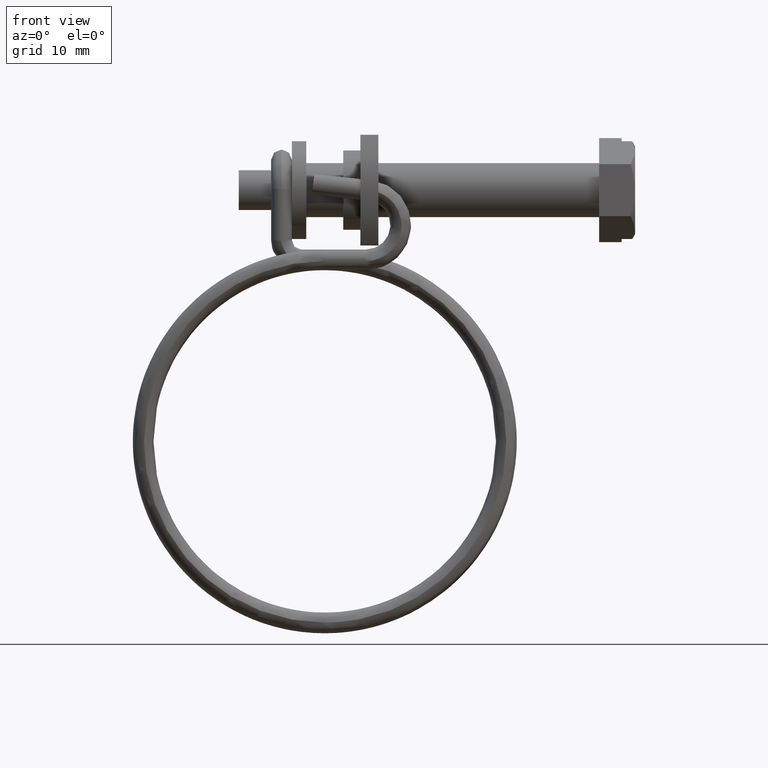
[diagram: clean part render]
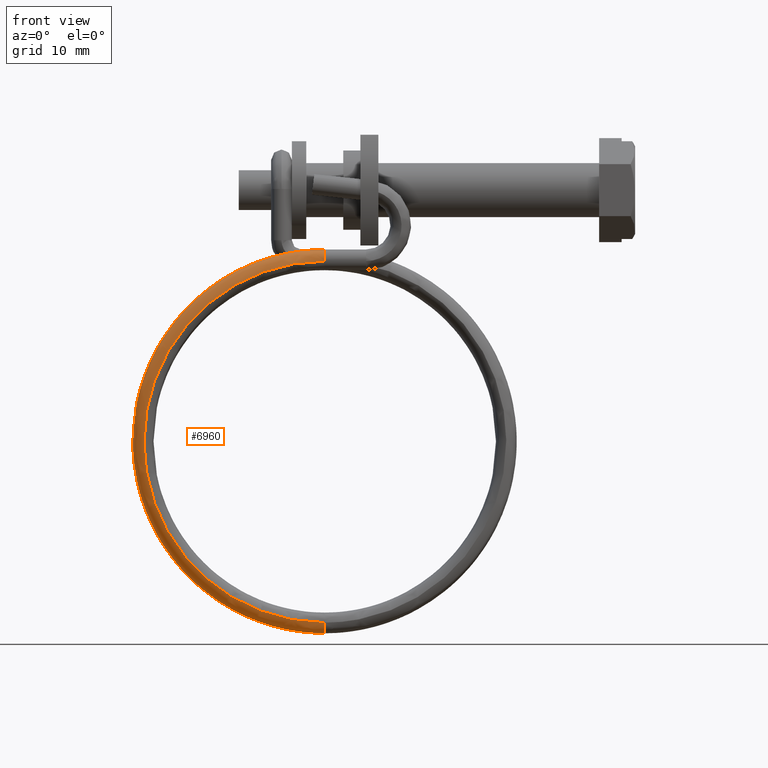
[diagram: same view with one face highlighted and labeled with its STEP entity id]
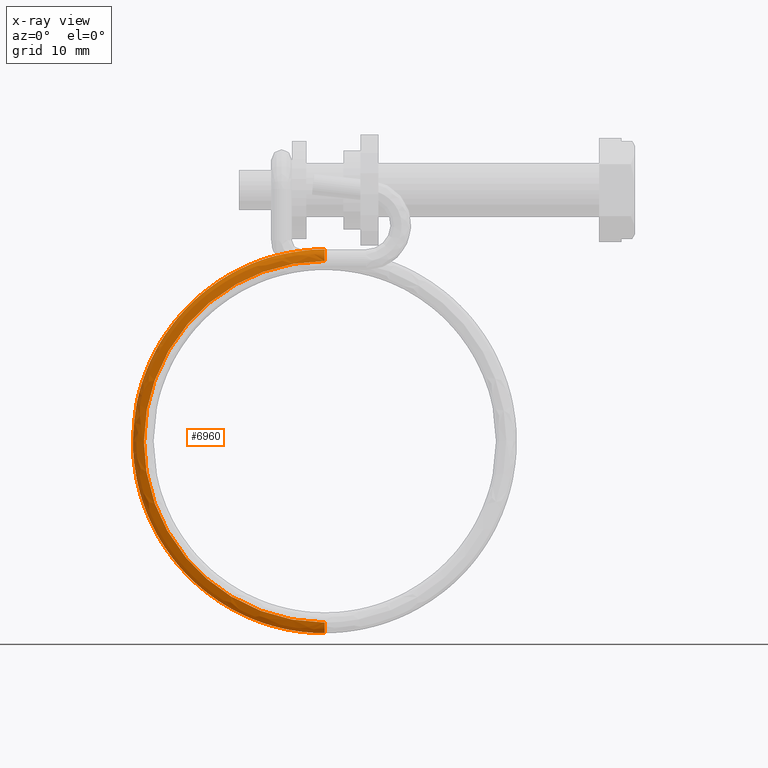
[diagram: x-ray of the same camera — body ghosted, the highlighted face saturated]
A machine part, front view. The second image highlights one B-rep face of the part: STEP entity #6960.
The next image is the same camera in x-ray: the body ghosted, the highlighted face saturated — about 0% of this face is hidden behind the body in this view.
In plain terms, the highlighted face is a freeform B-spline surface patch.
Its self-contained STEP definition (entity closure, byte-faithful):
#6232=CARTESIAN_POINT('',(-30.454069449347770,-5.899512904636270,-48.003588775773807));
#6233=VERTEX_POINT('',#6232);
#6258=CARTESIAN_POINT('',(-30.454061088412811,-3.600487095402411,-48.070524030237998));
#6259=VERTEX_POINT('',#6258);
#6479=CARTESIAN_POINT('',(-30.454061088412811,-3.600487095402411,-48.070524030237998));
#6480=CARTESIAN_POINT('',(-30.454022923536840,-3.609248900022687,-48.371465802510500));
#6481=CARTESIAN_POINT('',(-30.453985444215679,-3.741843315986873,-48.666947515876707));
#6482=CARTESIAN_POINT('',(-30.453933018707740,-4.179830318171347,-49.080152389208301));
#6483=CARTESIAN_POINT('',(-30.453918395348481,-4.482525853700742,-49.195331102686502));
#6484=CARTESIAN_POINT('',(-30.453920584236151,-5.084409403092613,-49.177807494045602));
#6485=CARTESIAN_POINT('',(-30.453937383004291,-5.379891118743883,-49.045213079376992));
#6486=CARTESIAN_POINT('',(-30.453992904066801,-5.793095995078642,-48.607226081043798));
#6487=CARTESIAN_POINT('',(-30.454031284471800,-5.908274709256544,-48.304530548046301));
#6488=CARTESIAN_POINT('',(-30.454069449347770,-5.899512904636270,-48.003588775773807));
#6489=B_SPLINE_CURVE_WITH_KNOTS('',3,(#6479,#6480,#6481,#6482,#6483,#6484,#6485,#6486,#6487,#6488),.UNSPECIFIED.,.F.,.U.,(4,2,2,2,4),(0.0,0.125000000000000,0.250000000000000,0.375000000000000,0.500000000000000),.UNSPECIFIED.);
#6490=EDGE_CURVE('',#6259,#6233,#6489,.T.);
#6680=CARTESIAN_POINT('',(-30.456625568189551,-7.795469376387576,-7.878765402089917));
#6681=VERTEX_POINT('',#6680);
#6682=CARTESIAN_POINT('',(-30.454069449347770,-5.899512904636270,-48.003588775773807));
#6683=CARTESIAN_POINT('',(-33.081206545164207,-5.899497140242894,-48.003922403407763));
#6684=CARTESIAN_POINT('',(-35.705503111013059,-5.924156230750636,-47.482053011400453));
#6685=CARTESIAN_POINT('',(-40.558175128811548,-6.019100890998052,-45.472704284542402));
#6686=CARTESIAN_POINT('',(-42.783752927136867,-6.089349118144679,-43.986015244666802));
#6687=CARTESIAN_POINT('',(-46.498048700671283,-6.264808436824077,-40.272705220818978));
#6688=CARTESIAN_POINT('',(-47.985308447849228,-6.369950625234323,-38.047542458912332));
#6689=CARTESIAN_POINT('',(-49.995932382999783,-6.599215759970631,-33.195520181929624));
#6690=CARTESIAN_POINT('',(-50.518506197451522,-6.723248682918362,-30.570565864677480));
#6691=CARTESIAN_POINT('',(-50.519364129422883,-6.971424286755770,-25.318334382511949));
#6692=CARTESIAN_POINT('',(-49.997646254341632,-7.095469487511473,-22.693120225495530));
#6693=CARTESIAN_POINT('',(-47.988419647621129,-7.324778971812625,-17.840159362384970));
#6694=CARTESIAN_POINT('',(-46.501697881190573,-7.429953131902115,-15.614319972036981));
#6695=CARTESIAN_POINT('',(-42.787959234483317,-7.605483231125107,-11.899511993628590));
#6696=CARTESIAN_POINT('',(-40.562398785062463,-7.675770093321188,-10.412005305974850));
#6697=CARTESIAN_POINT('',(-35.709234617986809,-7.770781940575878,-8.401234675774710));
#6698=CARTESIAN_POINT('',(-33.083966435634693,-7.795469376387576,-7.878765402089917));
#6699=CARTESIAN_POINT('',(-30.456625568189551,-7.795469376387576,-7.878765402089917));
#6700=B_SPLINE_CURVE_WITH_KNOTS('',3,(#6682,#6683,#6684,#6685,#6686,#6687,#6688,#6689,#6690,#6691,#6692,#6693,#6694,#6695,#6696,#6697,#6698,#6699),.UNSPECIFIED.,.F.,.U.,(4,2,2,2,2,2,2,2,4),(0.0,0.092106187843551,0.184212375687103,0.276318563530653,0.368424751374205,0.460530939217756,0.552637127061307,0.644743314904859,0.736849502748410),.UNSPECIFIED.);
#6701=EDGE_CURVE('',#6233,#6681,#6700,.T.);
#6704=CARTESIAN_POINT('',(-30.456625568189551,-5.512998254437166,-7.595347728924640));
#6705=VERTEX_POINT('',#6704);
#6706=CARTESIAN_POINT('',(-30.454061088412811,-3.600487095402411,-48.070524030237998));
#6707=CARTESIAN_POINT('',(-33.104188930051833,-3.600471193050302,-48.070860577497548));
#6708=CARTESIAN_POINT('',(-35.751450111800807,-3.625346126196356,-47.544423228546002));
#6709=CARTESIAN_POINT('',(-40.646567018977620,-3.721121253081282,-45.517499031111797));
#6710=CARTESIAN_POINT('',(-42.891599921497409,-3.791983727520603,-44.017810450183518));
#6711=CARTESIAN_POINT('',(-46.638344203327662,-3.968975939918208,-40.272059233585431));
#6712=CARTESIAN_POINT('',(-48.138585427448703,-4.075036134810580,-38.027468363265321));
#6713=CARTESIAN_POINT('',(-50.166752561214260,-4.306301858567188,-33.133106886049873));
#6714=CARTESIAN_POINT('',(-50.693882252473742,-4.431416599214115,-30.485257663431820));
#6715=CARTESIAN_POINT('',(-50.694745833571680,-4.681756741523352,-25.187217258581349));
#6716=CARTESIAN_POINT('',(-50.168477714979502,-4.806883866534927,-22.539105941116151));
#6717=CARTESIAN_POINT('',(-48.141716727843558,-5.038194325363051,-17.643797719123221));
#6718=CARTESIAN_POINT('',(-46.642016641247480,-5.144286770094825,-15.398524333632130));
#6719=CARTESIAN_POINT('',(-42.895831790471902,-5.321350379977653,-11.651262105789700));
#6720=CARTESIAN_POINT('',(-40.650815368023210,-5.392251826767263,-10.150748738652039));
#6721=CARTESIAN_POINT('',(-35.755200624960104,-5.488094727916539,-8.122390209679310));
#6722=CARTESIAN_POINT('',(-33.106958965418713,-5.512998254437166,-7.595347728924640));
#6723=CARTESIAN_POINT('',(-30.456625568189551,-5.512998254437166,-7.595347728924640));
#6724=B_SPLINE_CURVE_WITH_KNOTS('',3,(#6706,#6707,#6708,#6709,#6710,#6711,#6712,#6713,#6714,#6715,#6716,#6717,#6718,#6719,#6720,#6721,#6722,#6723),.UNSPECIFIED.,.F.,.U.,(4,2,2,2,2,2,2,2,4),(0.0,0.092106187843551,0.184212375687103,0.276318563530653,0.368424751374205,0.460530939217756,0.552637127061307,0.644743314904859,0.736849502748410),.UNSPECIFIED.);
#6725=EDGE_CURVE('',#6259,#6705,#6724,.T.);
#6752=CARTESIAN_POINT('',(-29.819154317751440,-3.599439486902968,-48.034330327720767));
#6753=CARTESIAN_POINT('',(-29.818775257303649,-3.599885065720378,-48.046363777780208));
#6754=CARTESIAN_POINT('',(-29.808898034714328,-3.603953106174704,-48.359564406483557));
#6755=CARTESIAN_POINT('',(-29.799406553379939,-3.741847091679217,-48.666864396367387));
#6756=CARTESIAN_POINT('',(-29.787020667064770,-4.179834320041874,-49.080067696394757));
#6757=CARTESIAN_POINT('',(-29.783837462452261,-4.482529874585739,-49.195246007254923));
#6758=CARTESIAN_POINT('',(-29.785287869992150,-5.084413415292958,-49.177722582063453));
#6759=CARTESIAN_POINT('',(-29.789912550780379,-5.379895103295203,-49.045128752335160));
#6760=CARTESIAN_POINT('',(-29.804349623842949,-5.793100045734942,-48.607143577867582));
#6761=CARTESIAN_POINT('',(-29.814462112058401,-5.912882350688569,-48.292339509557813));
#6762=CARTESIAN_POINT('',(-29.824315074782159,-5.898720402365109,-47.979430722207667));
#6763=CARTESIAN_POINT('',(-29.824694657542342,-5.898465086415670,-47.967389710308197));
#6764=CARTESIAN_POINT('',(-30.030789576583992,-3.599438216964849,-48.034357203883161));
#6765=CARTESIAN_POINT('',(-30.030536361120639,-3.599883795027109,-48.046390669924037));
#6766=CARTESIAN_POINT('',(-30.023938296065289,-3.603951815804390,-48.359591715057419));
#6767=CARTESIAN_POINT('',(-30.017597909306790,-3.741845782400714,-48.666892105106953));
#6768=CARTESIAN_POINT('',(-30.009324036470890,-4.179832986088657,-49.080095927332607));
#6769=CARTESIAN_POINT('',(-30.007197629889710,-4.482528534291436,-49.195274372398778));
#6770=CARTESIAN_POINT('',(-30.008166513927549,-5.084412077887642,-49.177750886057503));
#6771=CARTESIAN_POINT('',(-30.011255838322651,-5.379893775103299,-49.045156861349113));
#6772=CARTESIAN_POINT('',(-30.020899920595220,-5.793098746304008,-48.607171078207500));
#6773=CARTESIAN_POINT('',(-30.027655145003060,-5.912881071403263,-48.292366583549622));
#6774=CARTESIAN_POINT('',(-30.034237004270832,-5.898719142707988,-47.979457380792283));
#6775=CARTESIAN_POINT('',(-30.034490568643090,-5.898463827514720,-47.967416352889373));
#6776=CARTESIAN_POINT('',(-30.242424835416529,-3.599436947026730,-48.034384080045562));
#6777=CARTESIAN_POINT('',(-30.242297464937639,-3.599882524333840,-48.046417562067873));
#6778=CARTESIAN_POINT('',(-30.238978557416250,-3.603950525434075,-48.359619023631282));
#6779=CARTESIAN_POINT('',(-30.235789265233642,-3.741844473122211,-48.666919813846512));
#6780=CARTESIAN_POINT('',(-30.231627405877020,-4.179831652135442,-49.080124158270451));
#6781=CARTESIAN_POINT('',(-30.230557797327162,-4.482527193997133,-49.195302737542640));
#6782=CARTESIAN_POINT('',(-30.231045157862951,-5.084410740482326,-49.177779190051552));
#6783=CARTESIAN_POINT('',(-30.232599125864930,-5.379892446911394,-49.045184970363053));
#6784=CARTESIAN_POINT('',(-30.237450217347480,-5.793097446873072,-48.607198578547418));
#6785=CARTESIAN_POINT('',(-30.240848177947729,-5.912879792117955,-48.292393657541439));
#6786=CARTESIAN_POINT('',(-30.244158933759500,-5.898717883050867,-47.979484039376899));
#6787=CARTESIAN_POINT('',(-30.244286479743849,-5.898462568613771,-47.967442995470542));
#6788=CARTESIAN_POINT('',(-33.099166609055636,-3.599418328630025,-48.034778107980102));
#6789=CARTESIAN_POINT('',(-33.100737938221457,-3.599863894554511,-48.046811830895912));
#6790=CARTESIAN_POINT('',(-33.141682246766493,-3.603931599056161,-48.360019569450493));
#6791=CARTESIAN_POINT('',(-33.181027532021353,-3.741825261733156,-48.667326391503302));
#6792=CARTESIAN_POINT('',(-33.232371069769300,-4.179812068816904,-49.080538607203472));
#6793=CARTESIAN_POINT('',(-33.245566490914193,-4.482507515095388,-49.195719209407180));
#6794=CARTESIAN_POINT('',(-33.239554078689238,-5.084391105128947,-49.178194740185312));
#6795=CARTESIAN_POINT('',(-33.220383268742047,-5.379872950433151,-49.045597581498853));
#6796=CARTESIAN_POINT('',(-33.160536893040600,-5.793078383918838,-48.607602014914391));
#6797=CARTESIAN_POINT('',(-33.118617331756873,-5.912861032825660,-48.292790667409740));
#6798=CARTESIAN_POINT('',(-33.077773588265593,-5.898699419622288,-47.979874787672017));
#6799=CARTESIAN_POINT('',(-33.076200093944642,-5.898444116583273,-47.967833502540223));
#6800=CARTESIAN_POINT('',(-38.386047446830837,-3.649088368979139,-46.983592795656470));
#6801=CARTESIAN_POINT('',(-38.390762427102452,-3.649563478209916,-46.995001282728829));
#6802=CARTESIAN_POINT('',(-38.513621221570382,-3.654400996112223,-47.291917177507557));
#6803=CARTESIAN_POINT('',(-38.631681935897852,-3.793034408187555,-47.583568411214181));
#6804=CARTESIAN_POINT('',(-38.785744988253057,-4.231986549520451,-47.976350903540222));
#6805=CARTESIAN_POINT('',(-38.825339588634222,-4.534930089177961,-48.086281014346483));
#6806=CARTESIAN_POINT('',(-38.807298553273689,-5.136700636998640,-48.071148899125703));
#6807=CARTESIAN_POINT('',(-38.749774011224339,-5.431822042793089,-47.946179854140077));
#6808=CARTESIAN_POINT('',(-38.570197072857063,-5.843902276131895,-47.531997311577030));
#6809=CARTESIAN_POINT('',(-38.444411904006593,-5.962896775450160,-47.233865863369687));
#6810=CARTESIAN_POINT('',(-38.321854868237438,-5.947967239625536,-46.937201812315642));
#6811=CARTESIAN_POINT('',(-38.317133391132472,-5.947682352572406,-46.925786624547932));
#6812=CARTESIAN_POINT('',(-45.111343853949180,-3.861360624695096,-42.491197060569860));
#6813=CARTESIAN_POINT('',(-45.120053614746588,-3.861961856498379,-42.499936369302887));
#6814=CARTESIAN_POINT('',(-45.347004874355392,-3.870085765078935,-42.727301170737618));
#6815=CARTESIAN_POINT('',(-45.565092866695601,-4.011877222396226,-42.952117532758258));
#6816=CARTESIAN_POINT('',(-45.849686280974062,-4.454950447461673,-43.257684016007929));
#6817=CARTESIAN_POINT('',(-45.922827519808152,-4.758953116229176,-43.345199388343879));
#6818=CARTESIAN_POINT('',(-45.889501165628232,-5.360241078404492,-43.340280410405597));
#6819=CARTESIAN_POINT('',(-45.783238790729513,-5.653823741126990,-43.247876350376742));
#6820=CARTESIAN_POINT('',(-45.451514777522490,-6.061100411327764,-42.935353379329307));
#6821=CARTESIAN_POINT('',(-45.219157764459382,-6.176730241406503,-42.708429662387609));
#6822=CARTESIAN_POINT('',(-44.992763929470051,-6.158522386744513,-42.481145877288547));
#6823=CARTESIAN_POINT('',(-44.984042167378647,-6.158111203332825,-42.472403545756180));
#6824=CARTESIAN_POINT('',(-49.605364209222010,-4.179051411331200,-35.767790225534000));
#6825=CARTESIAN_POINT('',(-49.616739416054862,-4.179841121493883,-35.772540697501839));
#6826=CARTESIAN_POINT('',(-49.913144515927321,-4.192876232812321,-35.895967911063273));
#6827=CARTESIAN_POINT('',(-50.197973924941437,-4.339387092643173,-36.020905823817330));
#6828=CARTESIAN_POINT('',(-50.569661394448232,-4.788618890952732,-36.196136158867013));
#6829=CARTESIAN_POINT('',(-50.665186029286197,-5.094204328871137,-36.250154806169697));
#6830=CARTESIAN_POINT('',(-50.621660818831330,-5.694771112049098,-36.260498404315939));
#6831=CARTESIAN_POINT('',(-50.482878994488033,-5.986054267523500,-36.216759661002193));
#6832=CARTESIAN_POINT('',(-50.049637560023307,-6.386152462995328,-36.056157387963047));
#6833=CARTESIAN_POINT('',(-49.746172385242623,-6.496754110368090,-35.935646948953050));
#6834=CARTESIAN_POINT('',(-49.450495298515627,-6.473647115582535,-35.812045466207422));
#6835=CARTESIAN_POINT('',(-49.439104417635683,-6.473047194104671,-35.807297467710967));
#6836=CARTESIAN_POINT('',(-51.184097881784382,-4.553828941502825,-27.836235663791982));
#6837=CARTESIAN_POINT('',(-51.196408479046028,-4.554840763062810,-27.836285510656442));
#6838=CARTESIAN_POINT('',(-51.517187157135893,-4.573663457136291,-27.837227984053719));
#6839=CARTESIAN_POINT('',(-51.825438268014047,-4.725735873688801,-27.844464628615420));
#6840=CARTESIAN_POINT('',(-52.227689832436432,-5.182225212404094,-27.866100969695001));
#6841=CARTESIAN_POINT('',(-52.331069518220787,-5.489675856857685,-27.880645565834310));
#6842=CARTESIAN_POINT('',(-52.283965202263850,-6.089392770186409,-27.908975271828261));
#6843=CARTESIAN_POINT('',(-52.133771261023583,-6.377966082633391,-27.922585932092510));
#6844=CARTESIAN_POINT('',(-51.664904110293200,-6.769604839802770,-27.941013859783130));
#6845=CARTESIAN_POINT('',(-51.336484802892087,-6.874281049951878,-27.945905625710491));
#6846=CARTESIAN_POINT('',(-51.016494002925903,-6.845400687538470,-27.944488043160231));
#6847=CARTESIAN_POINT('',(-51.004166442730323,-6.844578348613075,-27.944447146820291));
#6848=CARTESIAN_POINT('',(-49.607916069969022,-4.928643459975729,-19.903898305029429));
#6849=CARTESIAN_POINT('',(-49.619292789232183,-4.929877414813991,-19.899247063715290));
#6850=CARTESIAN_POINT('',(-49.915737298679737,-4.954488261797505,-19.777692730542860));
#6851=CARTESIAN_POINT('',(-50.200604578192952,-5.112122782962098,-19.667216511739088));
#6852=CARTESIAN_POINT('',(-50.572341466691853,-5.575870377048778,-19.535243727752029));
#6853=CARTESIAN_POINT('',(-50.667878802346920,-5.885186411784898,-19.510310384002430));
#6854=CARTESIAN_POINT('',(-50.624347804836653,-6.484053371540925,-19.556627969718360));
#6855=CARTESIAN_POINT('',(-50.485547528272242,-6.769916574003640,-19.627593683246449));
#6856=CARTESIAN_POINT('',(-50.052248490690630,-7.153095059501787,-19.825069448570680));
#6857=CARTESIAN_POINT('',(-49.748742967640567,-7.251845248689381,-19.955375773264191));
#6858=CARTESIAN_POINT('',(-49.453026568130063,-7.217190949894120,-20.076154127678588));
#6859=CARTESIAN_POINT('',(-49.441634172735597,-7.216146171610082,-20.080820797208499));
#6860=CARTESIAN_POINT('',(-45.115518471080051,-5.246431645262266,-13.178430186619879));
#6861=CARTESIAN_POINT('',(-45.124230709469572,-5.247854135971546,-13.169788891400460));
#6862=CARTESIAN_POINT('',(-45.351246527987300,-5.277377684280149,-12.944265255193191));
#6863=CARTESIAN_POINT('',(-45.569396557975331,-5.439733048019584,-12.733880110558561));
#6864=CARTESIAN_POINT('',(-45.854070928146569,-5.909641094556891,-12.471531408060070));
#6865=CARTESIAN_POINT('',(-45.927232972850611,-6.220540381404955,-12.413091118195680));
#6866=CARTESIAN_POINT('',(-45.893897138603371,-6.818685942105547,-12.474675937166740));
#6867=CARTESIAN_POINT('',(-45.787604536142723,-7.102248935656189,-12.594321816983729));
#6868=CARTESIAN_POINT('',(-45.455786160204333,-7.478246756010569,-12.943764636868149));
#6869=CARTESIAN_POINT('',(-45.223363050500147,-7.571967228210468,-13.180516710065280));
#6870=CARTESIAN_POINT('',(-44.996904815167888,-7.532412294384144,-13.405009004096771));
#6871=CARTESIAN_POINT('',(-44.988180572070448,-7.531178720443021,-13.413671225479710));
#6872=CARTESIAN_POINT('',(-38.390458641354222,-5.458821377003266,-8.683548263067538));
#6873=CARTESIAN_POINT('',(-38.395176245562368,-5.460370059943126,-8.672236315310521));
#6874=CARTESIAN_POINT('',(-38.518103412253112,-5.493181814018550,-8.377123172400479));
#6875=CARTESIAN_POINT('',(-38.636229828617950,-5.658696967200245,-8.099866242917544));
#6876=CARTESIAN_POINT('',(-38.790378618692017,-6.132728373562582,-7.750253361547066));
#6877=CARTESIAN_POINT('',(-38.829995253883588,-6.444687374481323,-7.669385953467600));
#6878=CARTESIAN_POINT('',(-38.811944178504334,-7.042350083004124,-7.741189550473213));
#6879=CARTESIAN_POINT('',(-38.754387623435647,-7.324373483628859,-7.893418401027454));
#6880=CARTESIAN_POINT('',(-38.574710748597823,-7.695565087815260,-8.344576939444371));
#6881=CARTESIAN_POINT('',(-38.448855578969741,-7.785919032456395,-8.652576072228360));
#6882=CARTESIAN_POINT('',(-38.326230338912907,-7.743083969165016,-8.946486951223207));
#6883=CARTESIAN_POINT('',(-38.321506234255942,-7.741724029111390,-8.957823505071056));
#6884=CARTESIAN_POINT('',(-33.102000600687553,-5.508547667864415,-7.631172500975661));
#6885=CARTESIAN_POINT('',(-33.103573614732433,-5.510125927606645,-7.619234608483443));
#6886=CARTESIAN_POINT('',(-33.144561826369213,-5.543708367893753,-7.307811150123951));
#6887=CARTESIAN_POINT('',(-33.183949300143212,-5.709964109204353,-7.014880881974625));
#6888=CARTESIAN_POINT('',(-33.235347891695348,-6.184961944308427,-6.644815114086319));
#6889=CARTESIAN_POINT('',(-33.248557461811792,-6.497169319898347,-6.558691261596484));
#6890=CARTESIAN_POINT('',(-33.242538602694161,-7.094718858034995,-6.632889925063258));
#6891=CARTESIAN_POINT('',(-33.223347236588403,-7.376381410486941,-6.792755538056606));
#6892=CARTESIAN_POINT('',(-33.163436689793798,-7.746446538779344,-7.267754099677310));
#6893=CARTESIAN_POINT('',(-33.121472179690542,-7.836011440227452,-7.592452043421854));
#6894=CARTESIAN_POINT('',(-33.080584640940067,-7.792407583639307,-7.902633177407463));
#6895=CARTESIAN_POINT('',(-33.079009459418437,-7.791018026029032,-7.914596538487970));
#6896=CARTESIAN_POINT('',(-30.244976700579350,-5.508546332473632,-7.631200762383911));
#6897=CARTESIAN_POINT('',(-30.244850847498221,-5.510124591102730,-7.619262893449462));
#6898=CARTESIAN_POINT('',(-30.241571478988071,-5.543707002384824,-7.307840048937327));
#6899=CARTESIAN_POINT('',(-30.238420181675000,-5.709962715823122,-7.014910370666079));
#6900=CARTESIAN_POINT('',(-30.234307903635830,-6.184960514555360,-6.644845372523950));
#6901=CARTESIAN_POINT('',(-30.233251037611439,-6.497167880797080,-6.558721717868999));
#6902=CARTESIAN_POINT('',(-30.233732592094039,-7.094717423192940,-6.632920291195130));
#6903=CARTESIAN_POINT('',(-30.235268047268882,-7.376379989225931,-6.792785616773960));
#6904=CARTESIAN_POINT('',(-30.240061346433649,-7.746445159913738,-7.267783281167318));
#6905=CARTESIAN_POINT('',(-30.243418826242380,-7.836010091058250,-7.592480596441955));
#6906=CARTESIAN_POINT('',(-30.246690140156090,-7.792406263404106,-7.902661118087945));
#6907=CARTESIAN_POINT('',(-30.246816166651829,-7.791016706908506,-7.914624455578228));
#6908=CARTESIAN_POINT('',(-30.033327832969150,-5.508546332473632,-7.631200762383911));
#6909=CARTESIAN_POINT('',(-30.033076126806879,-5.510124591102730,-7.619262893449462));
#6910=CARTESIAN_POINT('',(-30.026517389786580,-5.543707002384824,-7.307840048937327));
#6911=CARTESIAN_POINT('',(-30.020214795160442,-5.709962715823122,-7.014910370666079));
#6912=CARTESIAN_POINT('',(-30.011990239082110,-6.184960514555360,-6.644845372523950));
#6913=CARTESIAN_POINT('',(-30.009876507033329,-6.497167880797080,-6.558721717868999));
#6914=CARTESIAN_POINT('',(-30.010839615998542,-7.094717423192940,-6.632920291195130));
#6915=CARTESIAN_POINT('',(-30.013910526348202,-7.376379989225931,-6.792785616773960));
#6916=CARTESIAN_POINT('',(-30.023497124677750,-7.746445159913738,-7.267783281167318));
#6917=CARTESIAN_POINT('',(-30.030212084295211,-7.836010091058250,-7.592480596441955));
#6918=CARTESIAN_POINT('',(-30.036754712122619,-7.792406263404106,-7.902661118087945));
#6919=CARTESIAN_POINT('',(-30.037006765114111,-7.791016706908506,-7.914624455578228));
#6920=CARTESIAN_POINT('',(-29.821678965358949,-5.508546332473632,-7.631200762383911));
#6921=CARTESIAN_POINT('',(-29.821301406115541,-5.510124591102730,-7.619262893449462));
#6922=CARTESIAN_POINT('',(-29.811463300585089,-5.543707002384824,-7.307840048937327));
#6923=CARTESIAN_POINT('',(-29.802009408645880,-5.709962715823122,-7.014910370666079));
#6924=CARTESIAN_POINT('',(-29.789672574528399,-6.184960514555360,-6.644845372523950));
#6925=CARTESIAN_POINT('',(-29.786501976455220,-6.497167880797080,-6.558721717868999));
#6926=CARTESIAN_POINT('',(-29.787946639903030,-7.094717423192940,-6.632920291195130));
#6927=CARTESIAN_POINT('',(-29.792553005427528,-7.376379989225931,-6.792785616773960));
#6928=CARTESIAN_POINT('',(-29.806932902921840,-7.746445159913738,-7.267783281167318));
#6929=CARTESIAN_POINT('',(-29.817005342348040,-7.836010091058250,-7.592480596441955));
#6930=CARTESIAN_POINT('',(-29.826819284089151,-7.792406263404106,-7.902661118087945));
#6931=CARTESIAN_POINT('',(-29.827197363576389,-7.791016706908506,-7.914624455578228));
#6932=B_SPLINE_SURFACE_WITH_KNOTS('',3,3,((#6752,#6764,#6776,#6788,#6800,#6812,#6824,#6836,#6848,#6860,#6872,#6884,#6896,#6908,#6920),(#6753,#6765,#6777,#6789,#6801,#6813,#6825,#6837,#6849,#6861,#6873,#6885,#6897,#6909,#6921),(#6754,#6766,#6778,#6790,#6802,#6814,#6826,#6838,#6850,#6862,#6874,#6886,#6898,#6910,#6922),(#6755,#6767,#6779,#6791,#6803,#6815,#6827,#6839,#6851,#6863,#6875,#6887,#6899,#6911,#6923),(#6756,#6768,#6780,#6792,#6804,#6816,#6828,#6840,#6852,#6864,#6876,#6888,#6900,#6912,#6924),(#6757,#6769,#6781,#6793,#6805,#6817,#6829,#6841,#6853,#6865,#6877,#6889,#6901,#6913,#6925),(#6758,#6770,#6782,#6794,#6806,#6818,#6830,#6842,#6854,#6866,#6878,#6890,#6902,#6914,#6926),(#6759,#6771,#6783,#6795,#6807,#6819,#6831,#6843,#6855,#6867,#6879,#6891,#6903,#6915,#6927),(#6760,#6772,#6784,#6796,#6808,#6820,#6832,#6844,#6856,#6868,#6880,#6892,#6904,#6916,#6928),(#6761,#6773,#6785,#6797,#6809,#6821,#6833,#6845,#6857,#6869,#6881,#6893,#6905,#6917,#6929),(#6762,#6774,#6786,#6798,#6810,#6822,#6834,#6846,#6858,#6870,#6882,#6894,#6906,#6918,#6930),(#6763,#6775,#6787,#6799,#6811,#6823,#6835,#6847,#6859,#6871,#6883,#6895,#6907,#6919,#6931)),.UNSPECIFIED.,.F.,.F.,.U.,(4,1,2,2,2,1,4),(4,2,1,1,1,1,1,1,1,2,4),(0.0,0.036148355373569,0.939855704280746,1.843563053187924,2.747270402095101,3.650977751002278,3.687132175991948),(0.0,0.669088927292095,9.032588504967725,17.396088082643370,25.759587660318982,34.123087237994632,42.486586815670243,50.850086393345862,59.213585971021537,67.577085548697170,68.246165603634779),.UNSPECIFIED.);
#6933=ORIENTED_EDGE('',*,*,#6701,.T.);
#6934=CARTESIAN_POINT('',(-30.456625568189551,-5.923962435577219,-6.848696777208076));
#6935=VERTEX_POINT('',#6934);
#6936=CARTESIAN_POINT('',(-30.456625568189551,-5.923962435577219,-6.848696777208076));
#6937=CARTESIAN_POINT('',(-30.456625568189551,-5.931706227004988,-6.842316079798972));
#6938=CARTESIAN_POINT('',(-30.456625568189551,-5.939537981340469,-6.836039841016215));
#6939=CARTESIAN_POINT('',(-30.456625568189551,-6.184955166895318,-6.644838882475817));
#6940=CARTESIAN_POINT('',(-30.456625568189551,-6.497163151611309,-6.558715978416036));
#6941=CARTESIAN_POINT('',(-30.456625568189551,-7.094714185012972,-6.632916361262470));
#6942=CARTESIAN_POINT('',(-30.456625568189551,-7.376377614396131,-6.792782734623714));
#6943=CARTESIAN_POINT('',(-30.456625568189551,-7.746444108485612,-7.267782172497864));
#6944=CARTESIAN_POINT('',(-30.456625568189551,-7.832568365627807,-7.579990269932524));
#6945=CARTESIAN_POINT('',(-30.456625568189551,-7.795469376387576,-7.878765402089917));
#6946=B_SPLINE_CURVE_WITH_KNOTS('',3,(#6936,#6937,#6938,#6939,#6940,#6941,#6942,#6943,#6944,#6945),.UNSPECIFIED.,.F.,.U.,(4,2,2,2,4),(0.120832592935764,0.125000000000000,0.250000000000000,0.375000000000000,0.500000000000000),.UNSPECIFIED.);
#6947=EDGE_CURVE('',#6935,#6681,#6946,.T.);
#6948=ORIENTED_EDGE('',*,*,#6947,.F.);
#6949=CARTESIAN_POINT('',(-30.456625568189551,-5.512998254437166,-7.595347728924640));
#6950=CARTESIAN_POINT('',(-30.456625568189551,-5.548858872162666,-7.306531694291005));
#6951=CARTESIAN_POINT('',(-30.456625568189551,-5.699435851035386,-7.033705533743439));
#6952=CARTESIAN_POINT('',(-30.456625568189551,-5.923962435577219,-6.848696777208076));
#6953=B_SPLINE_CURVE_WITH_KNOTS('',3,(#6949,#6950,#6951,#6952),.UNSPECIFIED.,.F.,.U.,(4,4),(0.0,0.120832592935764),.UNSPECIFIED.);
#6954=EDGE_CURVE('',#6705,#6935,#6953,.T.);
#6955=ORIENTED_EDGE('',*,*,#6954,.F.);
#6956=ORIENTED_EDGE('',*,*,#6725,.F.);
#6957=ORIENTED_EDGE('',*,*,#6490,.T.);
#6958=EDGE_LOOP('',(#6933,#6948,#6955,#6956,#6957));
#6959=FACE_OUTER_BOUND('',#6958,.T.);
#6960=ADVANCED_FACE('',(#6959),#6932,.T.);